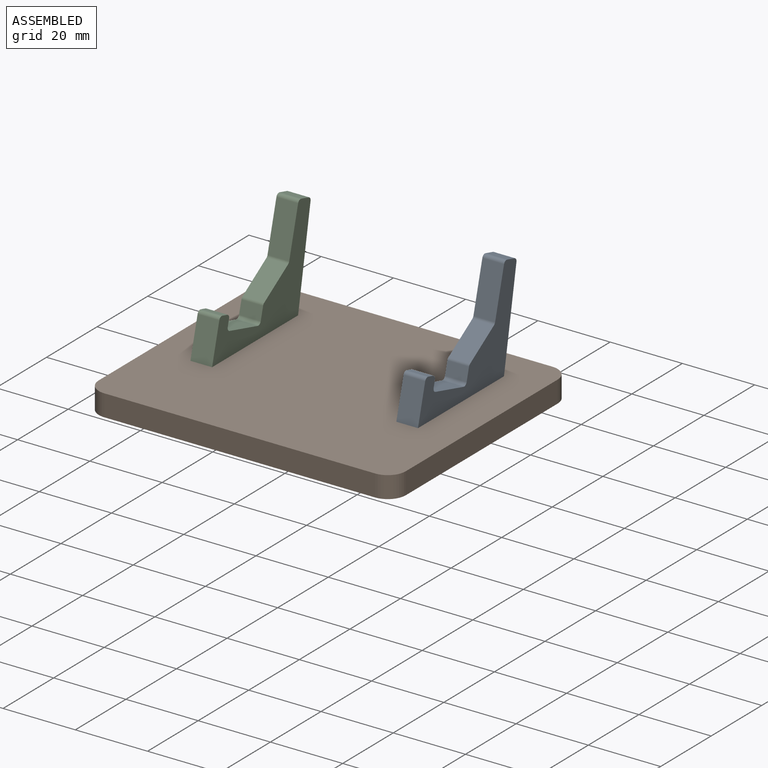
[diagram: assembled view]
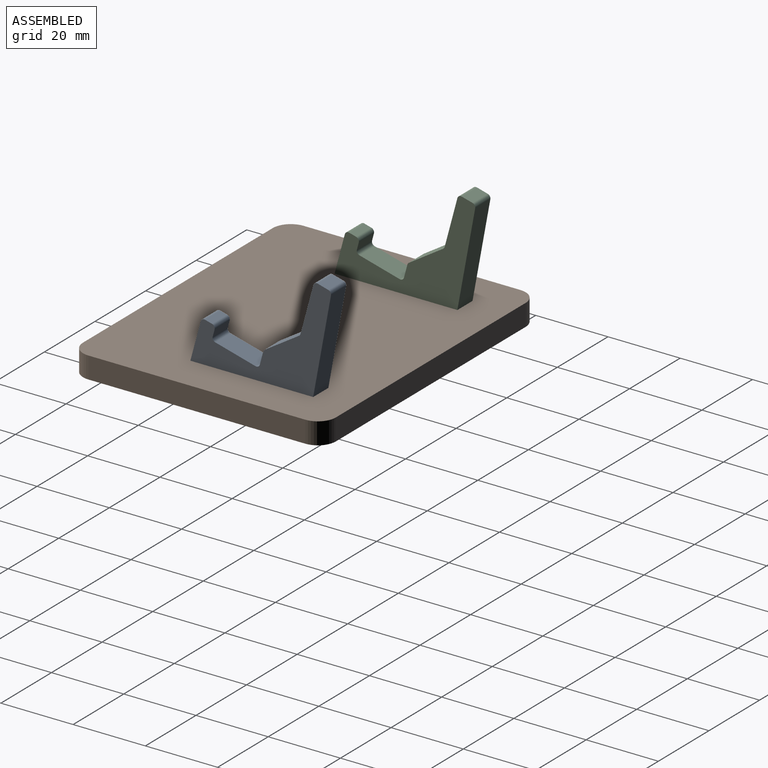
[diagram: assembled view, second angle]
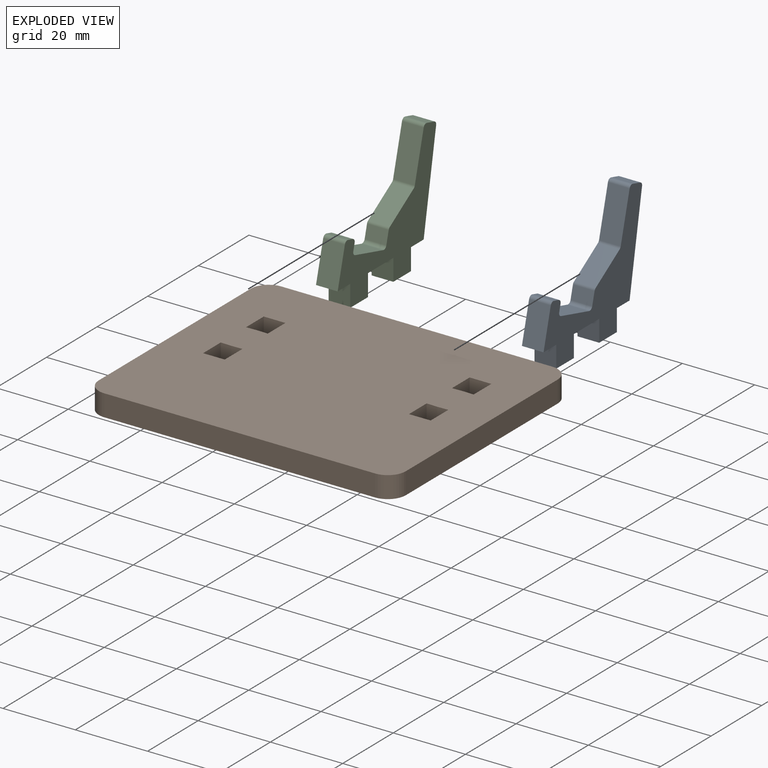
[diagram: exploded view]
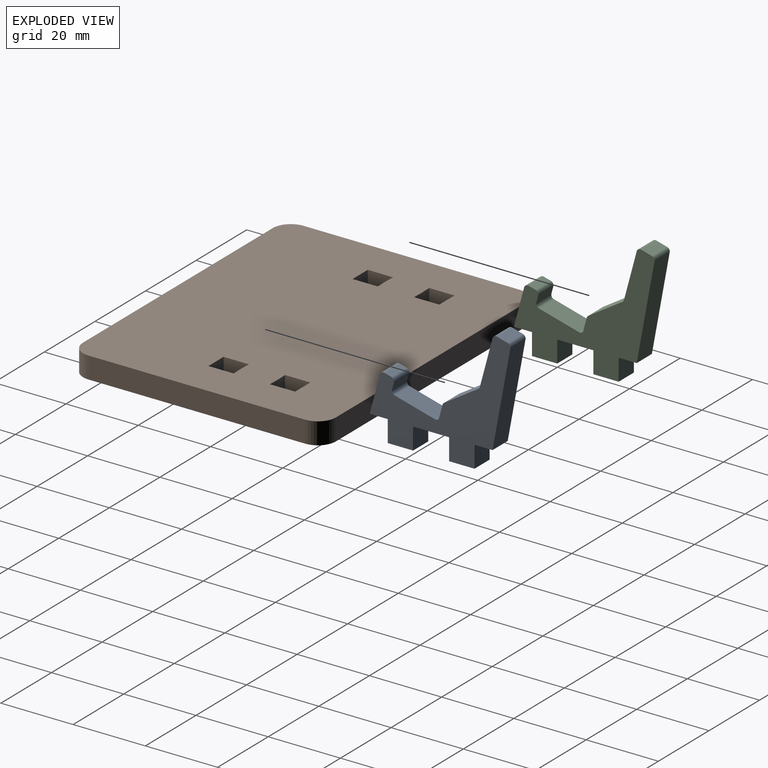
[diagram: exploded view, second angle]
ASSEMBLY  parts=3 mates=2
PART A: 28 faces, bbox 6x39x34.7 mm
  f0: plane 7x6mm, normal (0,0,-1), area 42mm2, adj f1,f17,f18,f19
  f1: plane 6x6mm, normal (0,1,0), area 36mm2, adj f0,f2,f18,f19
  f2: plane 6x5mm, normal (0,0,-1), area 30mm2, adj f1,f3,f18,f19
  f3: plane 26.76x6mm, normal (0,0.98,-0.18), area 163.3mm2, adj f2,f18,f19,f20
  f4: plane 6x2.97mm, normal (0,0.26,0.97), area 18.5mm2, adj f18,f19,f20,f21
  f5: plane 13.15x6mm, normal (0,-0.97,0.26), area 81.7mm2, adj f18,f19,f21,f22
  f6: plane 9.46x6.03mm, normal (0,-0.54,0.84), area 67.3mm2, adj f18,f19,f22,f23
  f7: plane 6x3.49mm, normal (0,-0.97,0.26), area 21.7mm2, adj f18,f19,f23,f24
  f8: plane 11.11x6mm, normal (0,0.26,0.97), area 69mm2, adj f18,f19,f24,f25
  f9: plane 6x1.93mm, normal (0,0.97,-0.26), area 12mm2, adj f18,f19,f25,f26
  f10: plane 6x1.93mm, normal (0,0.26,0.97), area 12mm2, adj f18,f19,f26,f27
  f11: plane 10.63x6mm, normal (0,-0.97,0.26), area 66mm2, adj f12,f18,f19,f27
  f12: plane 6x5mm, normal (0,0,-1), area 30mm2, adj f11,f13,f18,f19
  f13: plane 6x6mm, normal (0,-1,0), area 36mm2, adj f12,f14,f18,f19
  f14: plane 7x6mm, normal (0,0,-1), area 42mm2, adj f13,f15,f18,f19
  f15: plane 6x6mm, normal (0,1,0), area 36mm2, adj f14,f16,f18,f19
  f16: plane 10x6mm, normal (0,0,-1), area 60mm2, adj f15,f17,f18,f19
  f17: plane 6x6mm, normal (0,-1,0), area 36mm2, adj f0,f16,f18,f19
  f18: plane 38.95x34.74mm, normal (1,0,0), area 471.6mm2, adj f0,f1,f2,f3,f4,f5,f6,f7
  f19: plane 38.95x34.74mm, normal (-1,0,0), area 471.6mm2, adj f0,f1,f2,f3,f4,f5,f6,f7
  f20: cylinder r=1mm len=6mm, axis (-1,0,0), area 8.9mm2, adj f3,f4,f18,f19
  f21: cylinder r=1mm len=6mm, axis (-1,0,0), area 9.4mm2, adj f4,f5,f18,f19
  f22: cylinder r=1mm len=6mm, axis (1,0,0), area 4.5mm2, adj f5,f6,f18,f19
  f23: cylinder r=1mm len=6mm, axis (-1,0,0), area 4.5mm2, adj f6,f7,f18,f19
  f24: cylinder r=1mm len=6mm, axis (1,0,0), area 9.4mm2, adj f7,f8,f18,f19
  f25: cylinder r=1mm len=6mm, axis (1,0,0), area 9.4mm2, adj f8,f9,f18,f19
  f26: cylinder r=1mm len=6mm, axis (-1,0,0), area 9.4mm2, adj f9,f10,f18,f19
  f27: cylinder r=1mm len=6mm, axis (-1,0,0), area 9.4mm2, adj f10,f11,f18,f19
PART B: 30 faces, bbox 85x70x6 mm
  f0: plane 7x6mm, normal (-1,0,0), area 42mm2, adj f1,f23,f24,f25
  f1: plane 6x6mm, normal (0,1,0), area 36mm2, adj f0,f2,f24,f25
  f2: plane 7x6mm, normal (1,0,0), area 42mm2, adj f1,f3,f24,f25
  f3: plane 6x3mm, normal (-0.03,-1,0), area 18mm2, adj f2,f23,f24,f25
  f4: plane 7x6mm, normal (1,0,0), area 42mm2, adj f5,f19,f24,f25
  f5: plane 6x6mm, normal (0,-1,0), area 36mm2, adj f4,f6,f24,f25
  f6: plane 7x6mm, normal (-1,0,0), area 42mm2, adj f5,f7,f24,f25
  f7: plane 6x3mm, normal (0.03,1,0), area 18mm2, adj f6,f19,f24,f25
  f8: plane 6x6mm, normal (0,-1,0), area 36mm2, adj f9,f20,f24,f25
  f9: plane 7x6mm, normal (-1,0,0), area 42mm2, adj f8,f10,f24,f25
  f10: plane 6x3mm, normal (0.03,1,0), area 18mm2, adj f9,f11,f24,f25
  f11: plane 6x3mm, normal (-0.03,1,0), area 18mm2, adj f10,f20,f24,f25
  f12: plane 6x6mm, normal (0,1,0), area 36mm2, adj f13,f21,f24,f25
  f13: plane 7x6mm, normal (1,0,0), area 42mm2, adj f12,f14,f24,f25
  f14: plane 6x3mm, normal (-0.03,-1,0), area 18mm2, adj f13,f15,f24,f25
  f15: plane 6x3mm, normal (0.03,-1,0), area 18mm2, adj f14,f21,f24,f25
  f16: plane 75x6mm, normal (0,-1,0), area 450mm2, adj f24,f25,f26,f29
  f17: plane 60x6mm, normal (1,0,0), area 360mm2, adj f24,f25,f26,f27
  f18: plane 75x6mm, normal (0,1,0), area 450mm2, adj f24,f25,f27,f28
  f19: plane 6x3mm, normal (-0.03,1,0), area 18mm2, adj f4,f7,f24,f25
  f20: plane 7x6mm, normal (1,0,0), area 42mm2, adj f8,f11,f24,f25
  f21: plane 7x6mm, normal (-1,0,0), area 42mm2, adj f12,f15,f24,f25
  f22: plane 60x6mm, normal (-1,0,0), area 360mm2, adj f24,f25,f28,f29
  f23: plane 6x3mm, normal (0.03,-1,0), area 18mm2, adj f0,f3,f24,f25
  f24: plane 85x70mm, normal (0,0,1), area 5761.7mm2, adj f0,f1,f2,f3,f4,f5,f6,f7
  f25: plane 85x70mm, normal (0,0,-1), area 5761.7mm2, adj f0,f1,f2,f3,f4,f5,f6,f7
  f26: cylinder r=5mm len=6mm, axis (0,0,-1), area 47.1mm2, adj f16,f17,f24,f25
  f27: cylinder r=5mm len=6mm, axis (0,0,1), area 47.1mm2, adj f17,f18,f24,f25
  f28: cylinder r=5mm len=6mm, axis (0,0,-1), area 47.1mm2, adj f18,f22,f24,f25
  f29: cylinder r=5mm len=6mm, axis (0,0,1), area 47.1mm2, adj f16,f22,f24,f25
PART C: same geometry as A
PLACE A t=(25.5,24.49,-3.01)mm
PLACE B t=(0,-0.01,-3.01)mm
PLACE C t=(-31.5,24.49,-3.01)mm
MATE planar C.f1 <-> B.f5  axis (0,1,0) through (-28.5,19.49,-0.01)mm
MATE planar A.f1 <-> B.f8  axis (0,1,0) through (28.5,19.49,-0.01)mm
